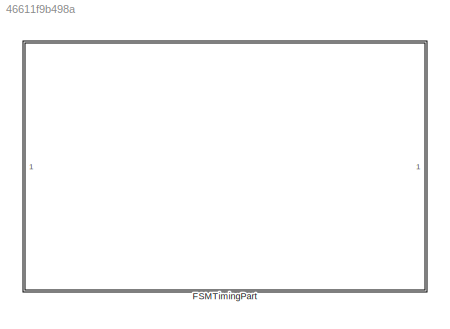
MODEL slx_46611f9b498a
KIND model
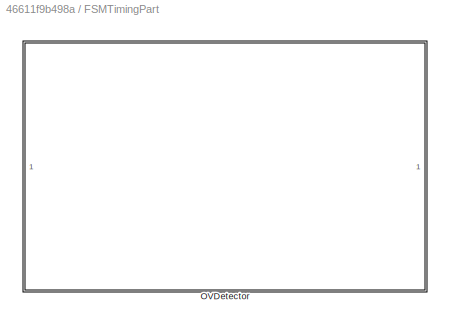
BLOCK [SubSystem] FSMTimingPart
  PartitionName = FSMTimingPart
  ScheduleAs = Periodic partition
  SystemSampleTime = 0.05
  TreatAsAtomicUnit = on
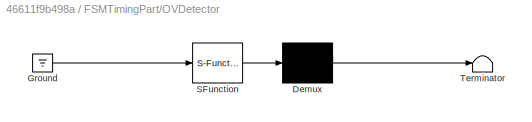
BLOCK [SubSystem] FSMTimingPart/OVDetector
  ErrorFcn = Stateflow.Translate.translate
  PermitHierarchicalResolution = ExplicitOnly
  SFBlockType = Chart
  TreatAsAtomicUnit = on
BLOCK [Demux] FSMTimingPart/OVDetector/ Demux 
  Outputs = 1
BLOCK [Ground] FSMTimingPart/OVDetector/ Ground 
BLOCK [S-Function] FSMTimingPart/OVDetector/ SFunction 
  EnableBusSupport = on
  FunctionName = sf_sfun
  PortCounts = [1 1]
  SFcnIsStateOwnerBlock = off
  SFunctionDeploymentMode = off
  Tag = Stateflow S-Function 3
BLOCK [Terminator] FSMTimingPart/OVDetector/ Terminator 
CHART FSMTimingPart/OVDetector states=4 transitions=14
  STATE_LABEL 'STATE_TSON\nSMKACADEMY.fsm.state = TS_ON;\nSMKACADEMY.electrical.switch_state = SWITCH_CLOSED;\n'
  STATE_LABEL 'STATE_PRECHARGE\nSMKACADEMY.fsm.state = PRECHARGE;\nSMKACADEMY.electrical.switch_state = SWITCH_PRECHARGE;\nSMKACADEMY.fsm.tPrecharge++;'
  STATE_LABEL 'STATE_TSOFF\nSMKACADEMY.fsm.state = TS_OFF;\nSMKACADEMY.electrical.switch_state = SWITCH_DISCHARGE;'
  STATE_LABEL 'STATE_FAULT\nSMKACADEMY.fsm.state = FAULT;'
CHART  states=0 transitions=0
